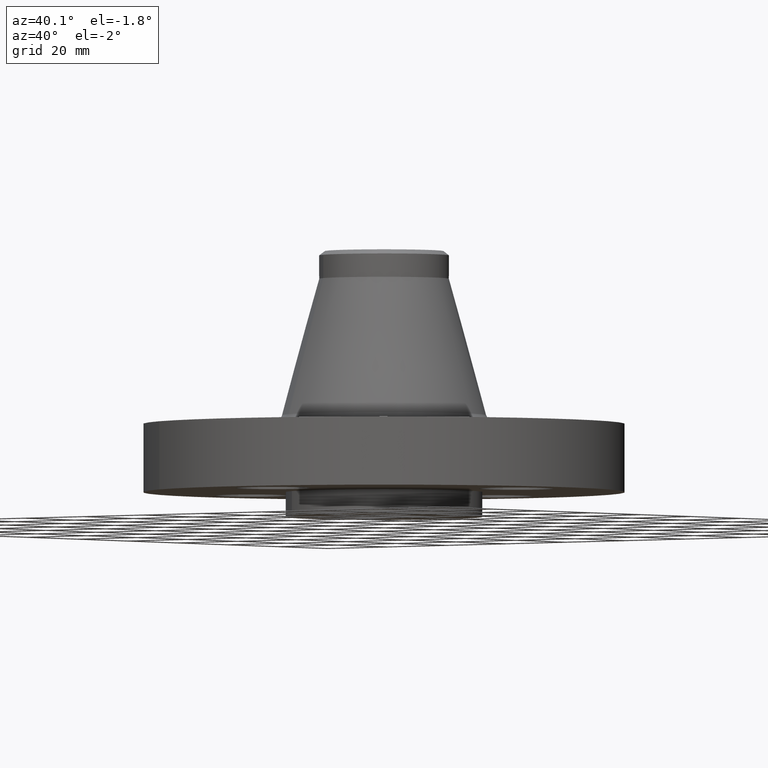
[diagram: clean part render]
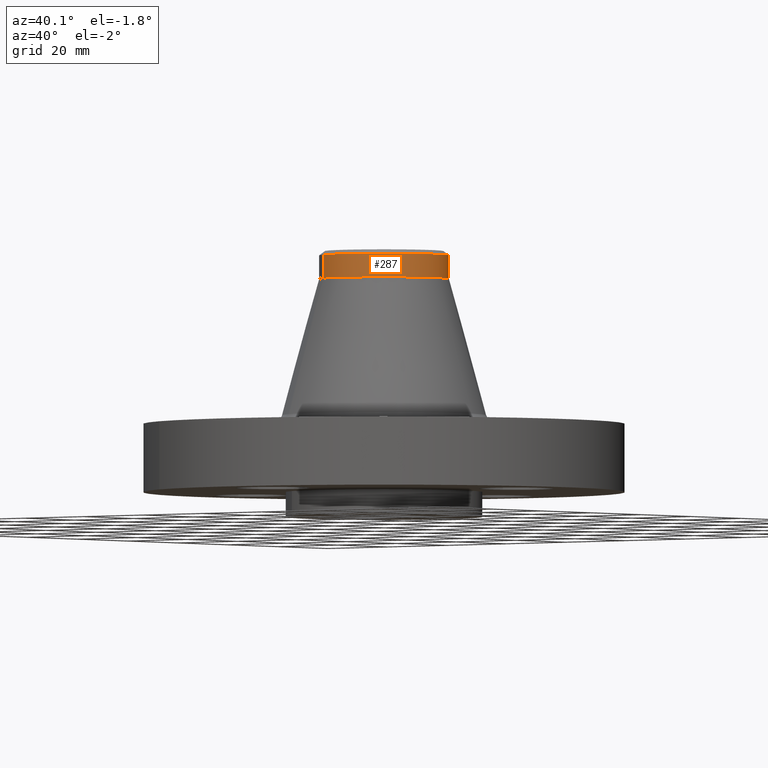
[diagram: same view with one face highlighted and labeled with its STEP entity id]
A machine part, auxiliary view. The second image highlights one B-rep face of the part: STEP entity #287.
In plain terms, the highlighted cylindrical surface (partial cylindrical patch) has radius 16.764 mm, axis along (0, 0, -1).
Its self-contained STEP definition (entity closure, byte-faithful):
#220=AXIS2_PLACEMENT_3D('Circle Axis2P3D',#218,#219,$) ;
#252=AXIS2_PLACEMENT_3D('Cylinder Axis2P3D',#249,#250,#251) ;
#270=AXIS2_PLACEMENT_3D('Circle Axis2P3D',#268,#269,$) ;
#277=AXIS2_PLACEMENT_3D('Circle Axis2P3D',#275,#276,$) ;
#215=CARTESIAN_POINT('Vertex',(0.31642085548,0.57920449085,2.16022616857)) ;
#218=CARTESIAN_POINT('Axis2P3D Location',(0.,0.,2.16022616857)) ;
#222=CARTESIAN_POINT('Vertex',(-0.31642085548,-0.57920449085,2.16022616857)) ;
#249=CARTESIAN_POINT('Axis2P3D Location',(0.,0.,1.095)) ;
#254=CARTESIAN_POINT('Line Origine',(-0.31642085548,-0.57920449085,2.27833640479)) ;
#258=CARTESIAN_POINT('Vertex',(-0.31642085548,-0.57920449085,2.39644664101)) ;
#261=CARTESIAN_POINT('Line Origine',(0.31642085548,0.57920449085,2.27833640479)) ;
#265=CARTESIAN_POINT('Vertex',(0.31642085548,0.57920449085,2.39644664101)) ;
#268=CARTESIAN_POINT('Axis2P3D Location',(0.,0.,2.39644664101)) ;
#272=CARTESIAN_POINT('Vertex',(0.31642085548,-0.57920449085,2.39644664101)) ;
#275=CARTESIAN_POINT('Axis2P3D Location',(0.,0.,2.39644664101)) ;
#219=DIRECTION('Axis2P3D Direction',(0.,0.,-0.0393700787402)) ;
#250=DIRECTION('Axis2P3D Direction',(0.,0.,-0.0393700787402)) ;
#251=DIRECTION('Axis2P3D XDirection',(-0.0188750212049,-0.0345504945626,0.)) ;
#255=DIRECTION('Vector Direction',(0.,0.,-0.0393700787402)) ;
#262=DIRECTION('Vector Direction',(0.,0.,-0.0393700787402)) ;
#269=DIRECTION('Axis2P3D Direction',(0.,0.,-0.0393700787402)) ;
#276=DIRECTION('Axis2P3D Direction',(0.,0.,-0.0393700787402)) ;
#256=VECTOR('Line Direction',#255,0.0393700787402) ;
#263=VECTOR('Line Direction',#262,0.0393700787402) ;
#281=ORIENTED_EDGE('',*,*,#260,.F.) ;
#282=ORIENTED_EDGE('',*,*,#224,.F.) ;
#283=ORIENTED_EDGE('',*,*,#267,.T.) ;
#284=ORIENTED_EDGE('',*,*,#274,.F.) ;
#285=ORIENTED_EDGE('',*,*,#279,.T.) ;
#287=ADVANCED_FACE('PartBody',(#286),#253,.T.) ;
#221=CIRCLE('generated circle',#220,0.660000000003) ;
#271=CIRCLE('generated circle',#270,0.660000000003) ;
#278=CIRCLE('generated circle',#277,0.660000000003) ;
#253=CYLINDRICAL_SURFACE('generated cylinder',#252,0.660000000003) ;
#224=EDGE_CURVE('',#216,#223,#221,.T.) ;
#260=EDGE_CURVE('',#223,#259,#257,.F.) ;
#267=EDGE_CURVE('',#216,#266,#264,.F.) ;
#274=EDGE_CURVE('',#273,#266,#271,.F.) ;
#279=EDGE_CURVE('',#273,#259,#278,.T.) ;
#280=EDGE_LOOP('',(#281,#282,#283,#284,#285)) ;
#286=FACE_OUTER_BOUND('',#280,.T.) ;
#257=LINE('Line',#254,#256) ;
#264=LINE('Line',#261,#263) ;
#216=VERTEX_POINT('',#215) ;
#223=VERTEX_POINT('',#222) ;
#259=VERTEX_POINT('',#258) ;
#266=VERTEX_POINT('',#265) ;
#273=VERTEX_POINT('',#272) ;